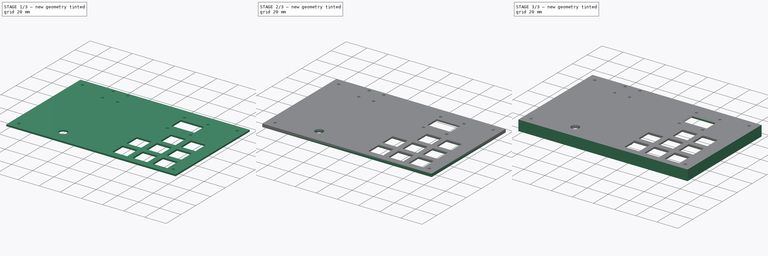
[diagram: build sequence overview — one tinted view per stage of 3, left to right]
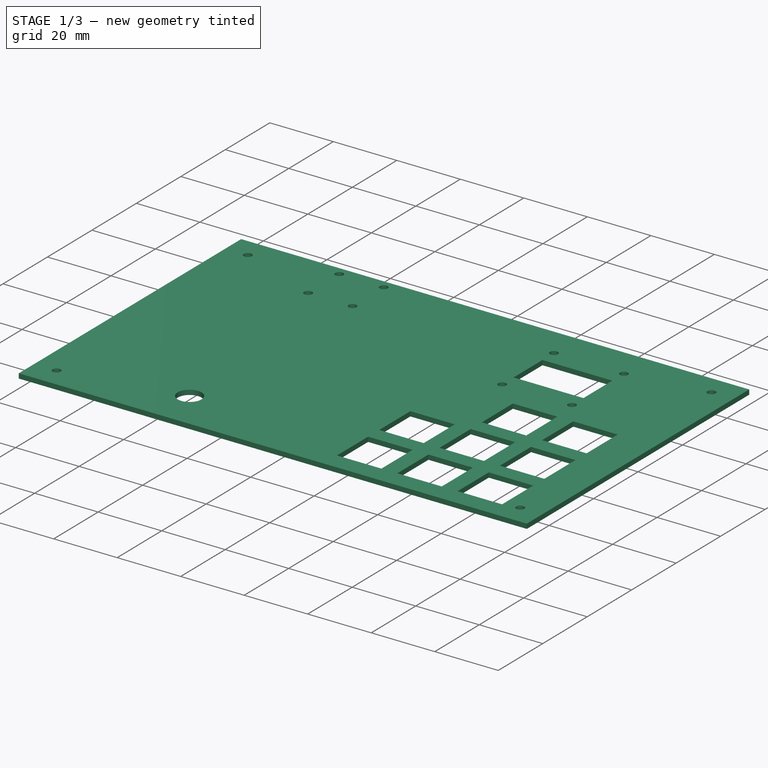
[diagram: stage 1 of 3 — iso view after this stage's code; geometry added in this stage tinted green]
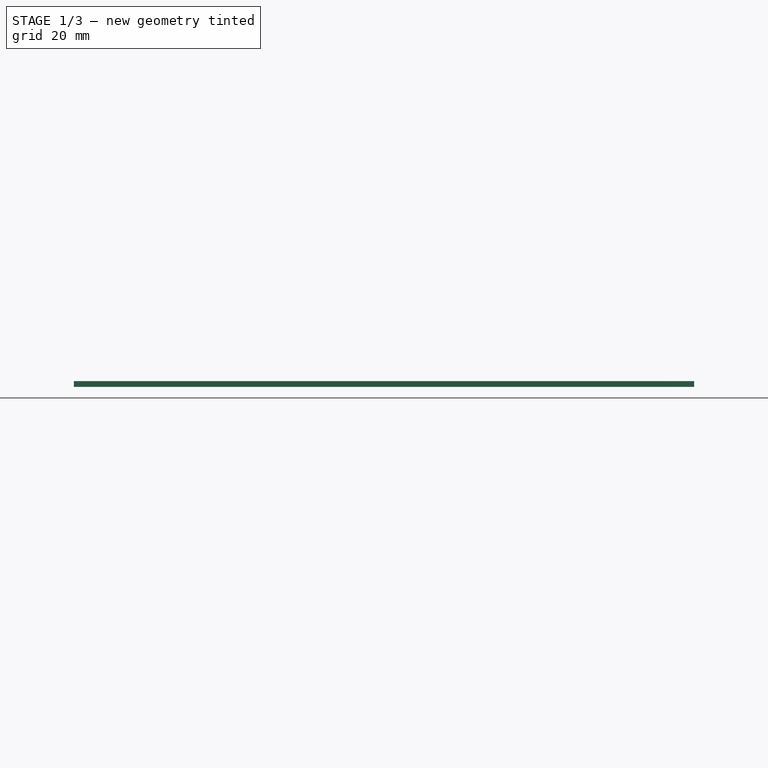
[diagram: stage 1 of 3 — front view after this stage's code; geometry added in this stage tinted green]
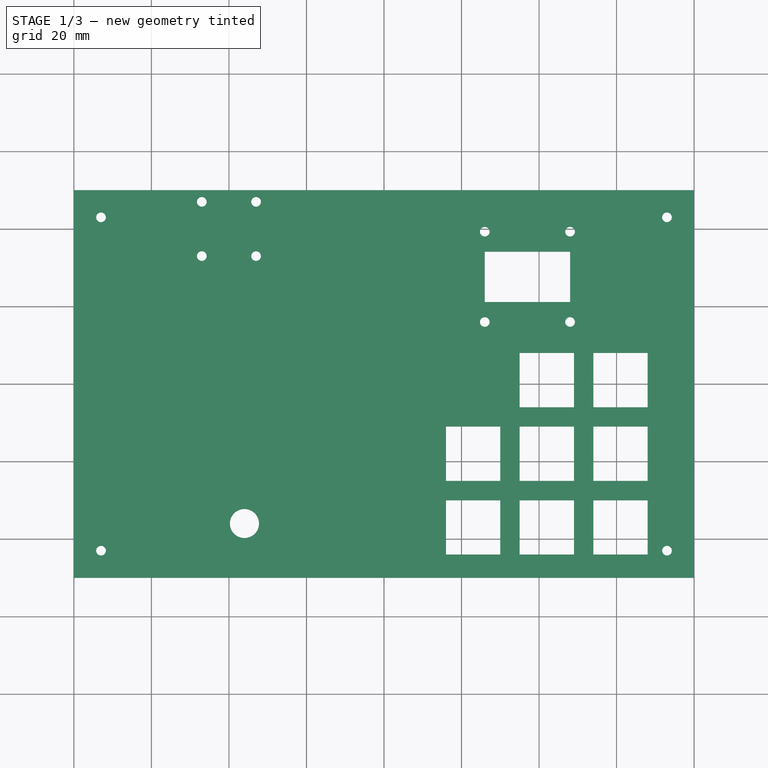
[diagram: stage 1 of 3 — top view after this stage's code; geometry added in this stage tinted green]
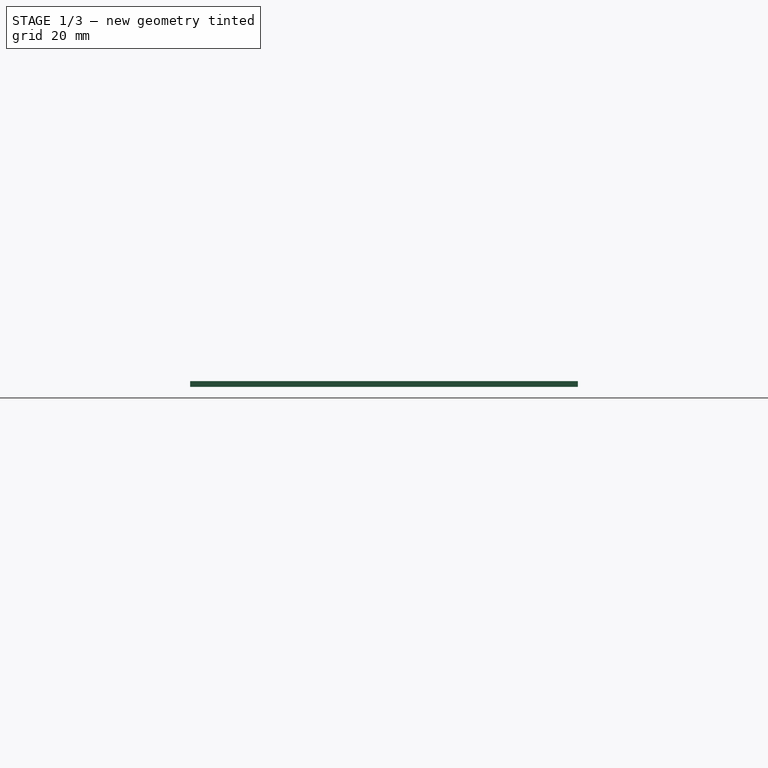
[diagram: stage 1 of 3 — right view after this stage's code; geometry added in this stage tinted green]
FCSTD DOCUMENT  (FreeCAD 1.0R38641 +678 (Git))
Label: chahor_top_plate
License: All rights reserved
LicenseURL: https://en.wikipedia.org/wiki/All_rights_reserved
objects: Sketcher::SketchObject×4, PartDesign::Pad×3, PartDesign::Pocket×1, PartDesign::Chamfer×1, PartDesign::Body×1
note: 24 computed .brp shape members not serialized (recipe doc carries the construction recipe); baked Part::Feature solids carry a one-line shape summary decoded from their .brp

FEATURE [Sketcher::SketchObject] Sketch  label="base_plate"
  ArcFitTolerance = 1e-06
  AttachmentSupport = -> [XY_Plane]
  FullyConstrained = true
  MakeInternals = false
  MapMode = 5
  sketch-geometry (5):
    g0: LineSegment StartX=-80 StartY=-50 StartZ=0 EndX=80 EndY=-50 EndZ=0
    g1: LineSegment StartX=80 StartY=-50 StartZ=0 EndX=80 EndY=50 EndZ=0
    g2: LineSegment StartX=80 StartY=50 StartZ=0 EndX=-80 EndY=50 EndZ=0
    g3: LineSegment StartX=-80 StartY=50 StartZ=0 EndX=-80 EndY=-50 EndZ=0
    g4: GeomPoint [constr] X=0 Y=0 Z=0
  constraints (12):
    c: Coincident(g0,g1)
    c: Coincident(g1,g2)
    c: Coincident(g2,g3)
    c: Coincident(g3,g0)
    c: Horizontal(g0)
    c: Horizontal(g2)
    c: Vertical(g1)
    c: Vertical(g3)
    c: Symmetric(g2,g0,g4)
    c: Distance(g1,g3) = 160  'plate_length'
    c: Distance(g0,g2) = 100  'plate_width'
    c: Coincident(g4,g-1)
FEATURE [PartDesign::Pad] Pad
  Direction = (0,0,1)
  Length = 1.5
  Length2 = 10
  Profile = -> Sketch
  ReferenceAxis = -> Sketch [N_Axis]
  Refine = true
  Suppressed = false
  Type = 0
FEATURE [Sketcher::SketchObject] Sketch001  label="top_holes"
  ArcFitTolerance = 1e-06
  AttachmentSupport = -> [Pad]
  FullyConstrained = false
  MakeInternals = false
  MapMode = 5
  Placement = pos=(0,0,1.5) rot=(0,0,1;0rad)
  expr: Constraints[151] = <<base_plate>>.Constraints.plate_length / 2 - 33 mm
  expr: Constraints[153] = <<base_plate>>.Constraints.plate_width / 2 - 3 mm
  expr: Constraints[185] = (23.3 mm - 13 mm) / 2
  expr: Constraints[190] = <<base_plate>>.Constraints.plate_width / 2 - 7 mm
  expr: Constraints[191] = <<base_plate>>.Constraints.plate_length / 2 - 7 mm
  expr: Constraints[93] = <<base_plate>>.Constraints.plate_length / 2
  expr: Constraints[95] = <<base_plate>>.Constraints.plate_width / 2
  sketch-geometry (81):
    g0: LineSegment StartX=35 StartY=-25 StartZ=0 EndX=49 EndY=-25 EndZ=0
    g1: LineSegment StartX=49 StartY=-25 StartZ=0 EndX=49 EndY=-11 EndZ=0
    g2: LineSegment StartX=49 StartY=-11 StartZ=0 EndX=35 EndY=-11 EndZ=0
    g3: LineSegment StartX=35 StartY=-11 StartZ=0 EndX=35 EndY=-25 EndZ=0
    g4: GeomPoint [constr] X=42 Y=-18 Z=0
    g5: LineSegment StartX=16 StartY=-25 StartZ=0 EndX=30 EndY=-25 EndZ=0
    g6: LineSegment StartX=30 StartY=-25 StartZ=0 EndX=30 EndY=-11 EndZ=0
    g7: LineSegment StartX=30 StartY=-11 StartZ=0 EndX=16 EndY=-11 EndZ=0
    g8: LineSegment StartX=16 StartY=-11 StartZ=0 EndX=16 EndY=-25 EndZ=0
    g9: GeomPoint [constr] X=23 Y=-18 Z=0
    g10: LineSegment StartX=54 StartY=-25 StartZ=0 EndX=68 EndY=-25 EndZ=0
    g11: LineSegment StartX=68 StartY=-25 StartZ=0 EndX=68 EndY=-11 EndZ=0
    g12: LineSegment StartX=68 StartY=-11 StartZ=0 EndX=54 EndY=-11 EndZ=0
    g13: LineSegment StartX=54 StartY=-11 StartZ=0 EndX=54 EndY=-25 EndZ=0
    g14: GeomPoint [constr] X=61 Y=-18 Z=0
    g15: LineSegment StartX=16 StartY=-44 StartZ=0 EndX=30 EndY=-44 EndZ=0
    g16: LineSegment StartX=30 StartY=-44 StartZ=0 EndX=30 EndY=-30 EndZ=0
    g17: LineSegment StartX=30 StartY=-30 StartZ=0 EndX=16 EndY=-30 EndZ=0
    g18: LineSegment StartX=16 StartY=-30 StartZ=0 EndX=16 EndY=-44 EndZ=0
    g19: GeomPoint [constr] X=23 Y=-37 Z=0
    g20: LineSegment StartX=35 StartY=-44 StartZ=0 EndX=49 EndY=-44 EndZ=0
    g21: LineSegment StartX=49 StartY=-44 StartZ=0 EndX=49 EndY=-30 EndZ=0
    g22: LineSegment StartX=49 StartY=-30 StartZ=0 EndX=35 EndY=-30 EndZ=0
    g23: LineSegment StartX=35 StartY=-30 StartZ=0 EndX=35 EndY=-44 EndZ=0
    g24: GeomPoint [constr] X=42 Y=-37 Z=0
    g25: LineSegment StartX=54 StartY=-44 StartZ=0 EndX=68 EndY=-44 EndZ=0
    g26: LineSegment StartX=68 StartY=-44 StartZ=0 EndX=68 EndY=-30 EndZ=0
    g27: LineSegment StartX=68 StartY=-30 StartZ=0 EndX=54 EndY=-30 EndZ=0
    g28: LineSegment StartX=54 StartY=-30 StartZ=0 EndX=54 EndY=-44 EndZ=0
    g29: GeomPoint [constr] X=61 Y=-37 Z=0
    g30: LineSegment [constr] StartX=0 StartY=-37 StartZ=0 EndX=79.3408 EndY=-37 EndZ=0
    g31: LineSegment [constr] StartX=0 StartY=-18 StartZ=0 EndX=59.2291 EndY=-18 EndZ=0
    g32: LineSegment [constr] StartX=30 StartY=-11 StartZ=0 EndX=35 EndY=-11 EndZ=0
    g33: LineSegment [constr] StartX=49 StartY=-11 StartZ=0 EndX=54 EndY=-11 EndZ=0
    g34: LineSegment [constr] StartX=30 StartY=-30 StartZ=0 EndX=35 EndY=-30 EndZ=0
    g35: LineSegment [constr] StartX=49 StartY=-30 StartZ=0 EndX=54 EndY=-30 EndZ=0
    g36: LineSegment [constr] StartX=16 StartY=-25 StartZ=0 EndX=16 EndY=-30 EndZ=0
    g37: LineSegment [constr] StartX=80 StartY=44.872 StartZ=0 EndX=80 EndY=-41.9581 EndZ=0
    g38: LineSegment [constr] StartX=-38.4882 StartY=-50 StartZ=0 EndX=82.0645 EndY=-50 EndZ=0
    g39: LineSegment StartX=35 StartY=-6 StartZ=0 EndX=49 EndY=-6 EndZ=0
    g40: LineSegment StartX=49 StartY=-6 StartZ=0 EndX=49 EndY=8 EndZ=0
    g41: LineSegment StartX=49 StartY=8 StartZ=0 EndX=35 EndY=8 EndZ=0
    g42: LineSegment StartX=35 StartY=8 StartZ=0 EndX=35 EndY=-6 EndZ=0
    g43: GeomPoint [constr] X=42 Y=1 Z=0
    g44: LineSegment StartX=54 StartY=-6 StartZ=0 EndX=68 EndY=-6 EndZ=0
    g45: LineSegment StartX=68 StartY=-6 StartZ=0 EndX=68 EndY=8 EndZ=0
    g46: LineSegment StartX=68 StartY=8 StartZ=0 EndX=54 EndY=8 EndZ=0
    g47: LineSegment StartX=54 StartY=8 StartZ=0 EndX=54 EndY=-6 EndZ=0
    g48: GeomPoint [constr] X=61 Y=1 Z=0
    g49: LineSegment [constr] StartX=49 StartY=-6 StartZ=0 EndX=54 EndY=-6 EndZ=0
    g50: LineSegment [constr] StartX=68 StartY=-6 StartZ=0 EndX=68 EndY=-11 EndZ=0
    g51: Circle CenterX=-36 CenterY=-36 CenterZ=0 NormalX=0 NormalY=0 NormalZ=1 AngleXU=0 Radius=3.75
    g52: Circle CenterX=-47 CenterY=47 CenterZ=0 NormalX=0 NormalY=0 NormalZ=1 AngleXU=0 Radius=1.25
    g53: LineSegment [constr] StartX=-47 StartY=47 StartZ=0 EndX=-47 EndY=33 EndZ=0
    g54: LineSegment [constr] StartX=-47 StartY=33 StartZ=0 EndX=-33 EndY=33 EndZ=0
    g55: LineSegment [constr] StartX=-33 StartY=33 StartZ=0 EndX=-33 EndY=47 EndZ=0
    g56: LineSegment [constr] StartX=-33 StartY=47 StartZ=0 EndX=-47 EndY=47 EndZ=0
    g57: Circle CenterX=-33 CenterY=47 CenterZ=0 NormalX=0 NormalY=0 NormalZ=1 AngleXU=0 Radius=1.25
    g58: Circle CenterX=-47 CenterY=33 CenterZ=0 NormalX=0 NormalY=0 NormalZ=1 AngleXU=0 Radius=1.25
    g59: Circle CenterX=-33 CenterY=33 CenterZ=0 NormalX=0 NormalY=0 NormalZ=1 AngleXU=0 Radius=1.25
    g60: LineSegment [constr] StartX=-47 StartY=72.9325 StartZ=0 EndX=-47 EndY=-21.5341 EndZ=0
    g61: LineSegment [constr] StartX=26 StartY=39.3 StartZ=0 EndX=26 EndY=16 EndZ=0
    g62: LineSegment [constr] StartX=26 StartY=16 StartZ=0 EndX=48 EndY=16 EndZ=0
    g63: LineSegment [constr] StartX=48 StartY=16 StartZ=0 EndX=48 EndY=39.3 EndZ=0
    g64: LineSegment [constr] StartX=48 StartY=39.3 StartZ=0 EndX=26 EndY=39.3 EndZ=0
    g65: Circle CenterX=26 CenterY=39.3 CenterZ=0 NormalX=0 NormalY=0 NormalZ=1 AngleXU=0 Radius=1.25
    g66: Circle CenterX=48 CenterY=39.3 CenterZ=0 NormalX=0 NormalY=0 NormalZ=1 AngleXU=0 Radius=1.25
    g67: Circle CenterX=26 CenterY=16 CenterZ=0 NormalX=0 NormalY=0 NormalZ=1 AngleXU=0 Radius=1.25
    g68: Circle CenterX=48 CenterY=16 CenterZ=0 NormalX=0 NormalY=0 NormalZ=1 AngleXU=0 Radius=1.25
    g69: LineSegment StartX=26 StartY=34.15 StartZ=0 EndX=26 EndY=21.15 EndZ=0
    g70: LineSegment StartX=26 StartY=21.15 StartZ=0 EndX=48 EndY=21.15 EndZ=0
    g71: LineSegment StartX=48 StartY=21.15 StartZ=0 EndX=48 EndY=34.15 EndZ=0
    g72: LineSegment StartX=48 StartY=34.15 StartZ=0 EndX=26 EndY=34.15 EndZ=0
    g73: Circle CenterX=-73 CenterY=43 CenterZ=0 NormalX=0 NormalY=0 NormalZ=1 AngleXU=0 Radius=1.25
    g74: Circle CenterX=-73 CenterY=-43 CenterZ=0 NormalX=0 NormalY=0 NormalZ=1 AngleXU=0 Radius=1.25
    g75: Circle CenterX=73 CenterY=43 CenterZ=0 NormalX=0 NormalY=0 NormalZ=1 AngleXU=0 Radius=1.25
    g76: Circle CenterX=73 CenterY=-43 CenterZ=0 NormalX=0 NormalY=0 NormalZ=1 AngleXU=0 Radius=1.25
    g77: LineSegment [constr] StartX=-73 StartY=43 StartZ=0 EndX=-73 EndY=-43 EndZ=0
    g78: LineSegment [constr] StartX=-73 StartY=43 StartZ=0 EndX=73 EndY=43 EndZ=0
    g79: LineSegment [constr] StartX=-73 StartY=-43 StartZ=0 EndX=73 EndY=-43 EndZ=0
    g80: LineSegment [constr] StartX=73 StartY=43 StartZ=0 EndX=73 EndY=-43 EndZ=0
  constraints (201):
    c: Coincident(g0,g1)
    c: Coincident(g1,g2)
    c: Coincident(g2,g3)
    c: Coincident(g3,g0)
    c: Horizontal(g0)
    c: Horizontal(g2)
    c: Vertical(g1)
    c: Vertical(g3)
    c: Symmetric(g2,g0,g4)
    c: Distance(g1,g3) = 14
    c: Distance(g0,g2) = 14
    c: Coincident(g5,g6)
    c: Coincident(g10,g11)
    c: Coincident(g15,g16)
    c: Coincident(g20,g21)
    c: Coincident(g25,g26)
    c: Coincident(g6,g7)
    c: Coincident(g11,g12)
    c: Coincident(g16,g17)
    c: Coincident(g21,g22)
    c: Coincident(g26,g27)
    c: Coincident(g7,g8)
    c: Coincident(g12,g13)
    c: Coincident(g17,g18)
    c: Coincident(g22,g23)
    c: Coincident(g27,g28)
    c: Coincident(g8,g5)
    c: Coincident(g13,g10)
    c: Coincident(g18,g15)
    c: Coincident(g23,g20)
    c: Coincident(g28,g25)
    c: Horizontal(g5)
    c: Horizontal(g10)
    c: Horizontal(g15)
    c: Horizontal(g20)
    c: Horizontal(g25)
    c: Horizontal(g7)
    c: Horizontal(g12)
    c: Horizontal(g17)
    c: Horizontal(g22)
    c: Horizontal(g27)
    c: Vertical(g6)
    c: Vertical(g11)
    c: Vertical(g16)
    c: Vertical(g21)
    c: Vertical(g26)
    c: Vertical(g8)
    c: Vertical(g13)
    c: Vertical(g18)
    c: Vertical(g23)
    c: Vertical(g28)
    c: Symmetric(g7,g5,g9)
    c: Symmetric(g12,g10,g14)
    c: Symmetric(g17,g15,g19)
    c: Symmetric(g22,g20,g24)
    c: Symmetric(g27,g25,g29)
    c: Distance(g6,g8) = 14
    c: Distance(g11,g13) = 14
    c: Distance(g16,g18) = 14
    c: Distance(g21,g23) = 14
    c: Distance(g26,g28) = 14
    c: Distance(g5,g7) = 14  'hole_width'
    c: Distance(g10,g12) = 14
    c: Distance(g15,g17) = 14
    c: Distance(g20,g22) = 14
    c: Distance(g25,g27) = 14
    c: PointOnObject(g30,g-2)
    c: Parallel(g30,g-1)
    c: PointOnObject(g19,g30)
    c: PointOnObject(g24,g30)
    c: PointOnObject(g29,g30)
    c: PointOnObject(g31,g-2)
    c: Horizontal(g31)
    c: PointOnObject(g9,g31)
    c: PointOnObject(g4,g31)
    c: PointOnObject(g14,g31)
    c: Distance(g32) = 5  'key_spacing'
    c: Coincident(g32,g6)
    c: Coincident(g32,g2)
    c: Coincident(g33,g1)
    c: Coincident(g33,g12)
    c: Equal(g32,g33)
    c: Coincident(g34,g16)
    c: Coincident(g34,g22)
    c: Coincident(g35,g21)
    c: Coincident(g35,g27)
    c: Equal(g34,g35)
    c: Equal(g34,g32)
    c: Coincident(g36,g5)
    c: Coincident(g36,g17)
    c: Equal(g36,g32)
    c: Parallel(g36,g-2)
    c: Vertical(g37)
    c: Distance(g-2,g37) = 80
    c: Horizontal(g38)
    c: Distance(g-1,g38) = 50
    c: Distance(g37,g11) = 12
    c: Distance(g38,g25) = 6
    c: Coincident(g39,g40)
    c: Coincident(g44,g45)
    c: Coincident(g40,g41)
    c: Coincident(g45,g46)
    c: Coincident(g41,g42)
    c: Coincident(g46,g47)
    c: Coincident(g42,g39)
    c: Coincident(g47,g44)
    c: Horizontal(g39)
    c: Horizontal(g44)
    c: Horizontal(g41)
    c: Horizontal(g46)
    c: Vertical(g40)
    c: Vertical(g45)
    c: Vertical(g42)
    c: Vertical(g47)
    c: Symmetric(g41,g39,g43)
    c: Symmetric(g46,g44,g48)
    c: Distance(g40,g42) = 14
    c: Distance(g45,g47) = 14
    c: Distance(g39,g41) = 14
    c: Distance(g44,g46) = 14
    c: Coincident(g49,g39)
    c: Coincident(g49,g44)
    c: Parallel(g49,g32)
    c: Coincident(g50,g44)
    c: Coincident(g50,g11)
    c: Equal(g50,g33)
    c: Equal(g33,g49)
    c: Parallel(g50,g-2)
    c: Equal(g5,g6)
    c: Diameter(g51) = 7.5
    c: Distance(g51,g38) = 14
    c: Distance(g51,g-2) = 36
    c: Diameter(g52) = 2.5
    c: Coincident(g53,g54)
    c: Coincident(g54,g55)
    c: Coincident(g55,g56)
    c: Coincident(g56,g53)
    c: Vertical(g53)
    c: Vertical(g55)
    c: Horizontal(g54)
    c: Horizontal(g56)
    c: DistanceX(g56,g56) = 14
    c: DistanceY(g53,g53) = 14
    c: Equal(g52,g57)
    c: Equal(g52,g58)
    c: Equal(g52,g59)
    c: Coincident(g52,g53)
    c: Coincident(g57,g55)
    c: Coincident(g58,g53)
    c: Coincident(g59,g54)
    c: Vertical(g60)
    c: Distance(g-2,g60) = 47
    c: PointOnObject(g53,g60)
    c: Distance(g-1,g56) = 47
    c: Coincident(g61,g62)
    c: Coincident(g62,g63)
    c: Coincident(g63,g64)
    c: Coincident(g64,g61)
    c: Vertical(g61)
    c: Vertical(g63)
    c: Horizontal(g62)
    c: Horizontal(g64)
    c: DistanceX(g64,g64) = 22
    c: DistanceY(g61,g61) = 23.3
    c: Distance(g37,g63) = 32  'screen_x'
    c: Distance(g62,g-1) = 16  'screen_y'
    c: Diameter(g65) = 2.5
    c: Equal(g65,g66)
    c: Equal(g65,g67)
    c: Equal(g65,g68)
    c: Coincident(g66,g63)
    c: Coincident(g65,g61)
    c: Coincident(g67,g61)
    c: Coincident(g68,g62)
    c: Coincident(g69,g70)
    c: Coincident(g70,g71)
    c: Coincident(g71,g72)
    c: Coincident(g72,g69)
    c: Vertical(g69)
    c: Vertical(g71)
    c: Horizontal(g70)
    c: Horizontal(g72)
    c: DistanceX(g72,g72) = 22
    c: DistanceY(g71,g71) = 13
    c: PointOnObject(g69,g61)
    c: DistanceY(g62,g70) = 5.15
    c: Equal(g52, g73-g76) x4
    c: Distance(g73,g-1) = 43
    c: Distance(g73,g-2) = 73
    c: Coincident(g77,g73)
    c: Coincident(g74,g77)
    c: Symmetric(g73,g74,g-1)
    c: Coincident(g78,g73)
    c: Horizontal(g78)
    c: Coincident(g78,g75)
    c: Coincident(g79,g74)
    c: Coincident(g79,g76)
    c: Coincident(g80,g75)
    c: Coincident(g80,g76)
    c: Vertical(g80)
    c: Symmetric(g76,g74,g-2)
FEATURE [PartDesign::Pocket] Pocket
  BaseFeature = -> Pad
  Direction = (0,0,-1)
  Length = 2
  Length2 = 5
  Profile = -> Sketch001
  ReferenceAxis = -> Sketch001 [N_Axis]
  Refine = true
  Suppressed = false
  Type = 0
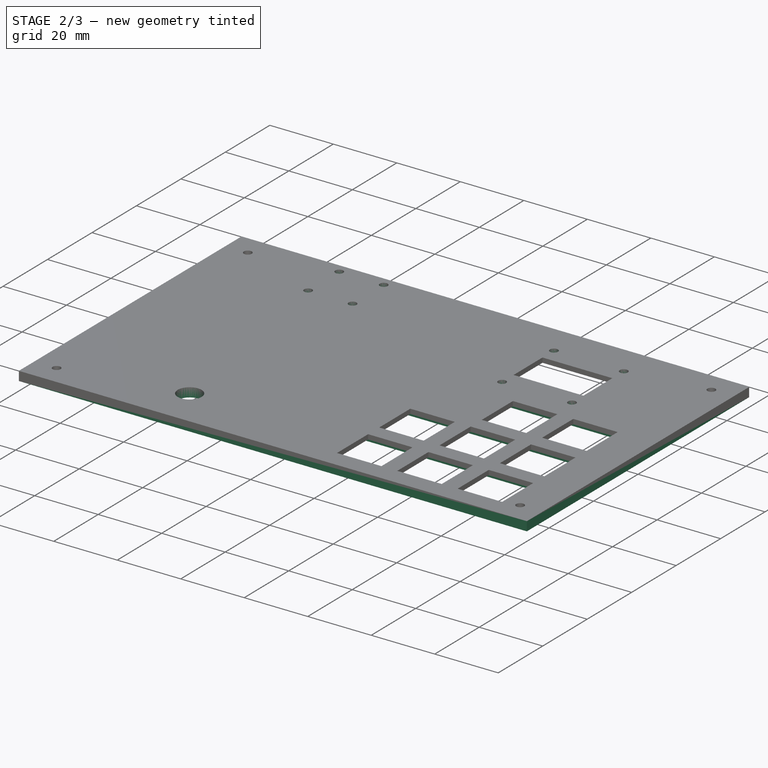
[diagram: stage 2 of 3 — iso view after this stage's code; geometry added in this stage tinted green]
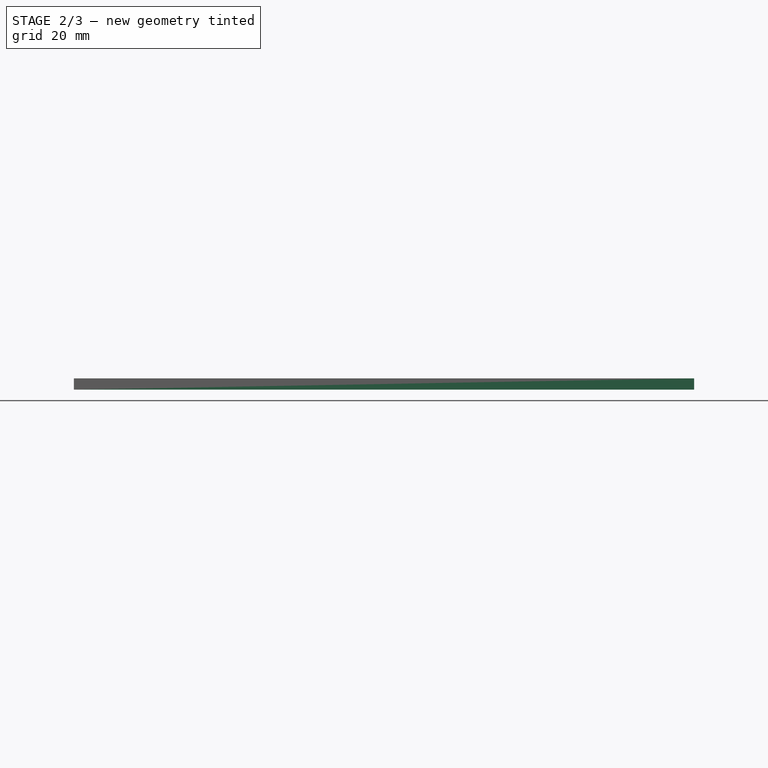
[diagram: stage 2 of 3 — front view after this stage's code; geometry added in this stage tinted green]
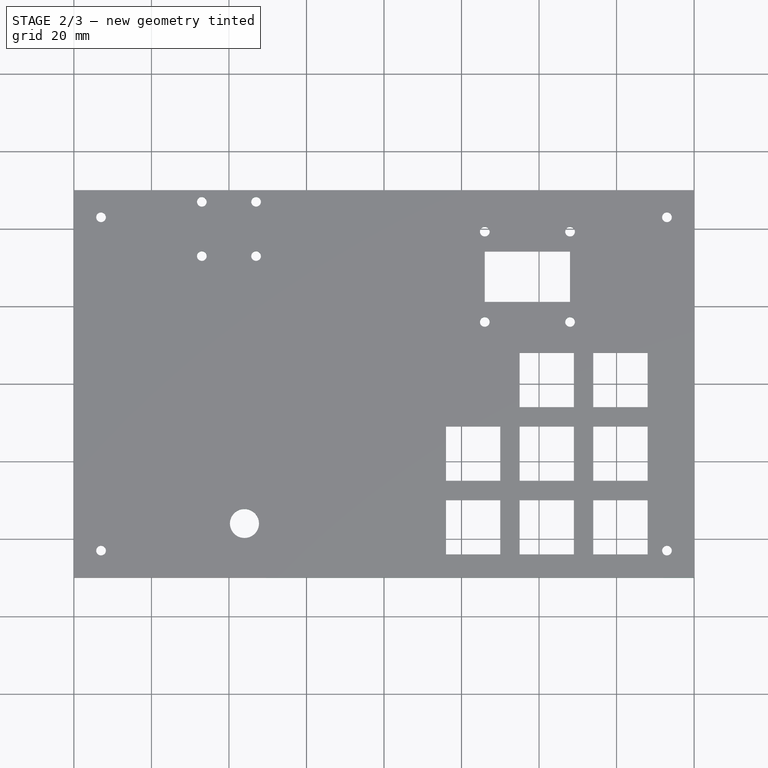
[diagram: stage 2 of 3 — top view after this stage's code; geometry added in this stage tinted green]
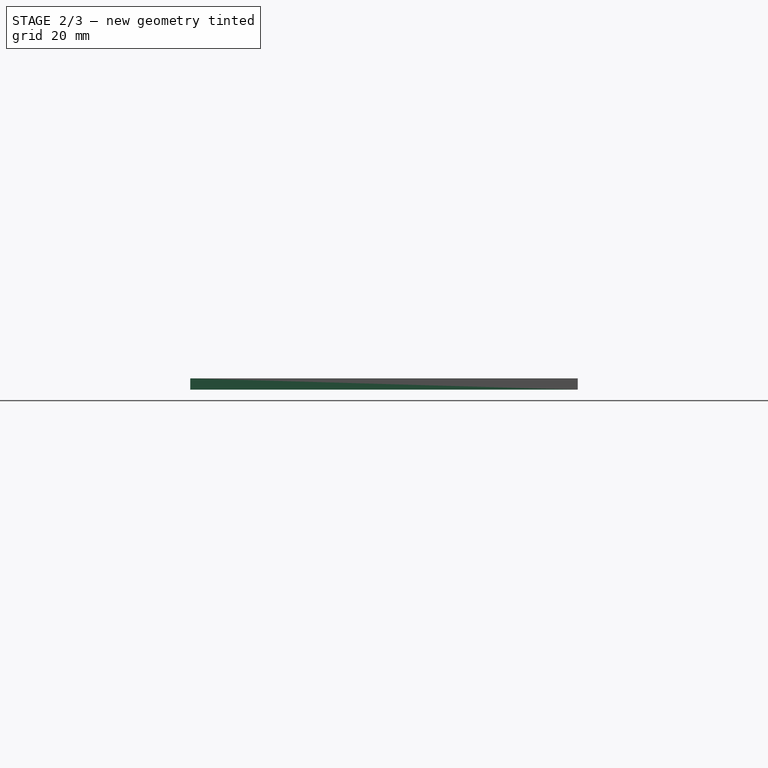
[diagram: stage 2 of 3 — right view after this stage's code; geometry added in this stage tinted green]
FEATURE [Sketcher::SketchObject] Sketch002  label="inner_ribs"
  ArcFitTolerance = 1e-06
  AttachmentSupport = -> [Pocket]
  FullyConstrained = false
  MakeInternals = false
  MapMode = 5
  Placement = pos=(0,0,0) rot=(1,0,0;3.14159rad)
  expr: Constraints[117] = <<base_plate>>.Constraints.plate_length / 2 - 33 mm
  expr: Constraints[118] = <<base_plate>>.Constraints.plate_width / 2 - 3 mm
  expr: Constraints[4] = <<base_plate>>.Constraints.plate_length
  expr: Constraints[5] = <<base_plate>>.Constraints.plate_width
  expr: Constraints[69] = 6 + 14 - 1.5
  expr: Constraints[6] = <<base_plate>>.Constraints.plate_width / 2
  expr: Constraints[85] = <<top_holes>>.Constraints.screen_y
  expr: Constraints[86] = <<top_holes>>.Constraints.screen_x
  sketch-geometry (61):
    g0: LineSegment StartX=80 StartY=-50 StartZ=0 EndX=80 EndY=50 EndZ=0
    g1: LineSegment StartX=80 StartY=50 StartZ=0 EndX=-80 EndY=50 EndZ=0
    g2: LineSegment StartX=-80 StartY=-50 StartZ=0 EndX=80 EndY=-50 EndZ=0
    g3: Circle CenterX=-47 CenterY=-33 CenterZ=0 NormalX=0 NormalY=0 NormalZ=1 AngleXU=0 Radius=1.25
    g4: LineSegment [constr] StartX=-47 StartY=-33 StartZ=0 EndX=-47 EndY=-47 EndZ=0
    g5: LineSegment [constr] StartX=-47 StartY=-47 StartZ=0 EndX=-33 EndY=-47 EndZ=0
    g6: LineSegment [constr] StartX=-33 StartY=-47 StartZ=0 EndX=-33 EndY=-33 EndZ=0
    g7: LineSegment [constr] StartX=-33 StartY=-33 StartZ=0 EndX=-47 EndY=-33 EndZ=0
    g8: Circle CenterX=-33 CenterY=-33 CenterZ=0 NormalX=0 NormalY=0 NormalZ=1 AngleXU=0 Radius=1.25
    g9: Circle CenterX=-47 CenterY=-47 CenterZ=0 NormalX=0 NormalY=0 NormalZ=1 AngleXU=0 Radius=1.25
    g10: Circle CenterX=-33 CenterY=-47 CenterZ=0 NormalX=0 NormalY=0 NormalZ=1 AngleXU=0 Radius=1.25
    g11: LineSegment StartX=-1 StartY=47 StartZ=0 EndX=-77 EndY=47 EndZ=0
    g12: LineSegment StartX=-77 StartY=47 StartZ=0 EndX=-77 EndY=-47 EndZ=0
    g13: LineSegment StartX=-1 StartY=47 StartZ=0 EndX=-1 EndY=-47 EndZ=0
    g14: LineSegment StartX=1 StartY=47 StartZ=0 EndX=1 EndY=28.5 EndZ=0
    g15: LineSegment StartX=1 StartY=28.5 StartZ=0 EndX=77 EndY=28.5 EndZ=0
    g16: LineSegment StartX=77 StartY=28.5 StartZ=0 EndX=77 EndY=47 EndZ=0
    g17: LineSegment StartX=77 StartY=47 StartZ=0 EndX=1 EndY=47 EndZ=0
    g18: LineSegment StartX=1 StartY=26.5 StartZ=0 EndX=1 EndY=9.5 EndZ=0
    g19: LineSegment StartX=1 StartY=9.5 StartZ=0 EndX=77 EndY=9.5 EndZ=0
    g20: LineSegment StartX=77 StartY=9.5 StartZ=0 EndX=77 EndY=26.5 EndZ=0
    g21: LineSegment StartX=77 StartY=26.5 StartZ=0 EndX=1 EndY=26.5 EndZ=0
    g22: LineSegment StartX=1 StartY=7.5 StartZ=0 EndX=1 EndY=-9.5 EndZ=0
    g23: LineSegment StartX=1 StartY=-9.5 StartZ=0 EndX=77 EndY=-9.5 EndZ=0
    g24: LineSegment StartX=77 StartY=-9.5 StartZ=0 EndX=77 EndY=7.5 EndZ=0
    g25: LineSegment StartX=77 StartY=7.5 StartZ=0 EndX=1 EndY=7.5 EndZ=0
    g26: LineSegment StartX=1 StartY=-11.5 StartZ=0 EndX=1 EndY=-47 EndZ=0
    g27: LineSegment StartX=77 StartY=-47 StartZ=0 EndX=77 EndY=-11.5 EndZ=0
    g28: LineSegment StartX=77 StartY=-11.5 StartZ=0 EndX=1 EndY=-11.5 EndZ=0
    g29: LineSegment [constr] StartX=1 StartY=91.6457 StartZ=0 EndX=1 EndY=-66.4058 EndZ=0
    g30: LineSegment [constr] StartX=77 StartY=74.1768 StartZ=0 EndX=77 EndY=-64.5341 EndZ=0
    g31: LineSegment [constr] StartX=26 StartY=-16 StartZ=0 EndX=26 EndY=-39.3 EndZ=0
    g32: LineSegment [constr] StartX=26 StartY=-39.3 StartZ=0 EndX=48 EndY=-39.3 EndZ=0
    g33: LineSegment [constr] StartX=48 StartY=-39.3 StartZ=0 EndX=48 EndY=-16 EndZ=0
    g34: LineSegment [constr] StartX=48 StartY=-16 StartZ=0 EndX=26 EndY=-16 EndZ=0
    g35: Circle CenterX=26 CenterY=-16 CenterZ=0 NormalX=0 NormalY=0 NormalZ=1 AngleXU=0 Radius=1.25
    g36: Circle CenterX=26 CenterY=-16 CenterZ=0 NormalX=0 NormalY=0 NormalZ=1 AngleXU=0 Radius=2
    g37: Circle CenterX=48 CenterY=-16 CenterZ=0 NormalX=0 NormalY=0 NormalZ=1 AngleXU=0 Radius=1.25
    g38: Circle CenterX=48 CenterY=-16 CenterZ=0 NormalX=0 NormalY=0 NormalZ=1 AngleXU=0 Radius=2
    g39: Circle CenterX=26 CenterY=-39.3 CenterZ=0 NormalX=0 NormalY=0 NormalZ=1 AngleXU=0 Radius=1.25
    g40: Circle CenterX=26 CenterY=-39.3 CenterZ=0 NormalX=0 NormalY=0 NormalZ=1 AngleXU=0 Radius=2
    g41: Circle CenterX=48 CenterY=-39.3 CenterZ=0 NormalX=0 NormalY=0 NormalZ=1 AngleXU=0 Radius=1.25
    g42: Circle CenterX=48 CenterY=-39.3 CenterZ=0 NormalX=0 NormalY=0 NormalZ=1 AngleXU=0 Radius=2
    g43: Circle CenterX=-36 CenterY=36 CenterZ=0 NormalX=0 NormalY=0 NormalZ=1 AngleXU=0 Radius=3.75
    g44: LineSegment [constr] StartX=-36 StartY=36 StartZ=0 EndX=-36 EndY=-21.2495 EndZ=0
    g45: LineSegment [constr] StartX=-36 StartY=36 StartZ=0 EndX=-61.2858 EndY=36 EndZ=0
    g46: LineSegment [constr] StartX=-26.4913 StartY=30 StartZ=0 EndX=-61.1327 EndY=30 EndZ=0
    g47: Circle CenterX=-36 CenterY=36 CenterZ=0 NormalX=0 NormalY=0 NormalZ=1 AngleXU=0 Radius=10
    g48: ArcOfCircle CenterX=-36.4 CenterY=30 CenterZ=0 NormalX=0 NormalY=0 NormalZ=1 AngleXU=0 Radius=1 StartAngle=1.5708 EndAngle=4.71239
    g49: ArcOfCircle CenterX=-35.6 CenterY=30 CenterZ=0 NormalX=0 NormalY=0 NormalZ=1 AngleXU=0 Radius=1 StartAngle=4.71239 EndAngle=7.85398
    g50: LineSegment StartX=-36.4 StartY=31 StartZ=0 EndX=-35.6 EndY=31 EndZ=0
    g51: LineSegment StartX=-36.4 StartY=29 StartZ=0 EndX=-35.6 EndY=29 EndZ=0
    g52: LineSegment StartX=1 StartY=-47 StartZ=0 EndX=77 EndY=-47 EndZ=0
    g53: LineSegment StartX=-52.1 StartY=-30.9 StartZ=0 EndX=-52.1 EndY=-47 EndZ=0
    g54: LineSegment StartX=-27.9 StartY=-47 StartZ=0 EndX=-27.9 EndY=-30.9 EndZ=0
    g55: LineSegment StartX=-27.9 StartY=-30.9 StartZ=0 EndX=-52.1 EndY=-30.9 EndZ=0
    g56: LineSegment StartX=-27.9 StartY=-47 StartZ=0 EndX=-1 EndY=-47 EndZ=0
    g57: LineSegment StartX=-77 StartY=-47 StartZ=0 EndX=-52.1 EndY=-47 EndZ=0
    g58: LineSegment StartX=-80 StartY=50 StartZ=0 EndX=-80 EndY=-50 EndZ=0
    g59: Circle CenterX=0 CenterY=20 CenterZ=0 NormalX=0 NormalY=0 NormalZ=1 AngleXU=0 Radius=6
    g60: Circle CenterX=0 CenterY=-20 CenterZ=0 NormalX=0 NormalY=0 NormalZ=1 AngleXU=0 Radius=6
  constraints (148):
    c: Coincident(g0,g1)
    c: Coincident(g2,g0)
    c: Vertical(g0)
    c: Horizontal(g2)
    c: DistanceX(g1,g1) = 160
    c: DistanceY(g2,g1) = 100
    c: Distance(g-1,g1) = 50
    c: Diameter(g3) = 2.5
    c: Coincident(g4,g5)
    c: Coincident(g5,g6)
    c: Coincident(g6,g7)
    c: Coincident(g7,g4)
    c: Vertical(g4)
    c: Vertical(g6)
    c: Horizontal(g5)
    c: Horizontal(g7)
    c: DistanceX(g7,g7) = 14  'pico_holes_len'
    c: DistanceY(g4,g4) = 14
    c: Equal(g3,g8)
    c: Equal(g3,g9)
    c: Equal(g3,g10)
    c: Coincident(g3,g4)
    c: Coincident(g8,g6)
    c: Coincident(g9,g4)
    c: Coincident(g10,g5)
    c: Horizontal(g11)
    c: Coincident(g12,g11)
    c: Vertical(g12)
    c: Distance(g1,g12) = 3
    c: Coincident(g13,g11)
    c: Vertical(g13)
    c: Coincident(g14,g15)
    c: Coincident(g15,g16)
    c: Coincident(g16,g17)
    c: Coincident(g17,g14)
    c: Vertical(g14)
    c: Vertical(g16)
    c: Horizontal(g15)
    c: Horizontal(g17)
    c: Coincident(g18,g19)
    c: Coincident(g19,g20)
    c: Coincident(g20,g21)
    c: Coincident(g21,g18)
    c: Vertical(g18)
    c: Vertical(g20)
    c: Horizontal(g19)
    c: Horizontal(g21)
    c: Coincident(g22,g23)
    c: Coincident(g23,g24)
    c: Coincident(g24,g25)
    c: Coincident(g25,g22)
    c: Vertical(g22)
    c: Vertical(g24)
    c: Horizontal(g25)
    c: Coincident(g27,g28)
    c: Coincident(g28,g26)
    c: Vertical(g29)
    c: Distance(g29,g13) = 2
    c: PointOnObject(g14,g29)
    c: PointOnObject(g18,g29)
    c: PointOnObject(g22,g29)
    c: PointOnObject(g26,g29)
    c: Vertical(g30)
    c: Distance(g0,g30) = 3
    c: PointOnObject(g27,g30)
    c: PointOnObject(g23,g30)
    c: PointOnObject(g19,g30)
    c: PointOnObject(g15,g30)
    c: Distance(g1,g17) = 3
    c: Distance(g15,g17) = 18.5
    c: Distance(g15,g21) = 2
    c: Distance(g19,g25) = 2
    c: Distance(g24,g23) = 17
    c: Distance(g19,g21) = 17
    c: Distance(g23,g28) = 2
    c: Coincident(g31,g32)
    c: Coincident(g32,g33)
    c: Coincident(g33,g34)
    c: Coincident(g34,g31)
    c: Vertical(g31)
    c: Vertical(g33)
    c: Horizontal(g32)
    c: Horizontal(g34)
    c: DistanceX(g34,g34) = 22
    c: DistanceY(g31,g31) = 23.3
    c: Distance(g-1,g34) = 16
    c: Distance(g33,g0) = 32
    c: Symmetric(g14,g11,g-2)
    c: Coincident(g36,g35)
    c: Coincident(g38,g37)
    c: Coincident(g40,g39)
    c: Coincident(g42,g41)
    c: Coincident(g35,g31)
    c: Coincident(g37,g33)
    c: Coincident(g39,g31)
    c: Coincident(g41,g32)
    c: Diameter(g43) = 7.5
    c: Distance(g43,g-2) = 36
    c: Coincident(g44,g43)
    c: Distance(g43,g1) = 14
    c: Coincident(g45,g43)
    c: Horizontal(g45)
    c: Horizontal(g46)
    c: Distance(g45,g46) = 6
    c: Diameter(g47) = 20
    c: Coincident(g47,g43)
    c: Tangent(g48,g50) = 1.5708
    c: Tangent(g48,g51) = -1.5708
    c: Tangent(g49,g50) = 1.5708
    c: Tangent(g49,g51) = -1.5708
    c: Equal(g48,g49)
    c: Horizontal(g51)
    c: DistanceX(g48,g49) = 0.8
    c: Symmetric(g49,g48,g44)
    c: PointOnObject(g49,g46)
    c: Radius(g49) = 1
    c: Symmetric(g1,g0,g-2)
    c: Distance(g4,g-2) = 47
    c: Distance(g4,g-1) = 47
    c: Vertical(g26)
    c: Vertical(g27)
    c: Coincident(g52,g26)
    c: Coincident(g52,g27)
    c: Horizontal(g52)
    c: Distance(g2,g52) = 3
    c: Coincident(g54,g55)
    c: Coincident(g55,g53)
    c: Vertical(g53)
    c: Vertical(g54)
    c: Horizontal(g55)
    c: Coincident(g56,g54)
    c: Coincident(g56,g13)
    c: Horizontal(g56)
    c: Coincident(g57,g12)
    c: Coincident(g57,g53)
    c: Horizontal(g57)
    c: Coincident(g58,g1)
    c: Coincident(g58,g2)
    c: Vertical(g58)
    c: Distance(g4,g53) = 5.1
    c: Distance(g5,g54) = 5.1
    c: Distance(g6,g55) = 2.1
    c: Diameter(g59) = 12
    c: PointOnObject(g59,g-2)
    c: Diameter(g60) = 12
    c: Symmetric(g59,g60,g-1)
    c: DistanceY(g60,g59) = 40
    c: Distance(g13,g2) = 3
FEATURE [PartDesign::Pad] Pad001
  BaseFeature = -> Pocket
  Direction = (0,0,-1)
  Length = 1.4
  Length2 = 10
  Profile = -> Sketch002
  ReferenceAxis = -> Sketch002 [N_Axis]
  Refine = true
  Suppressed = false
  Type = 0
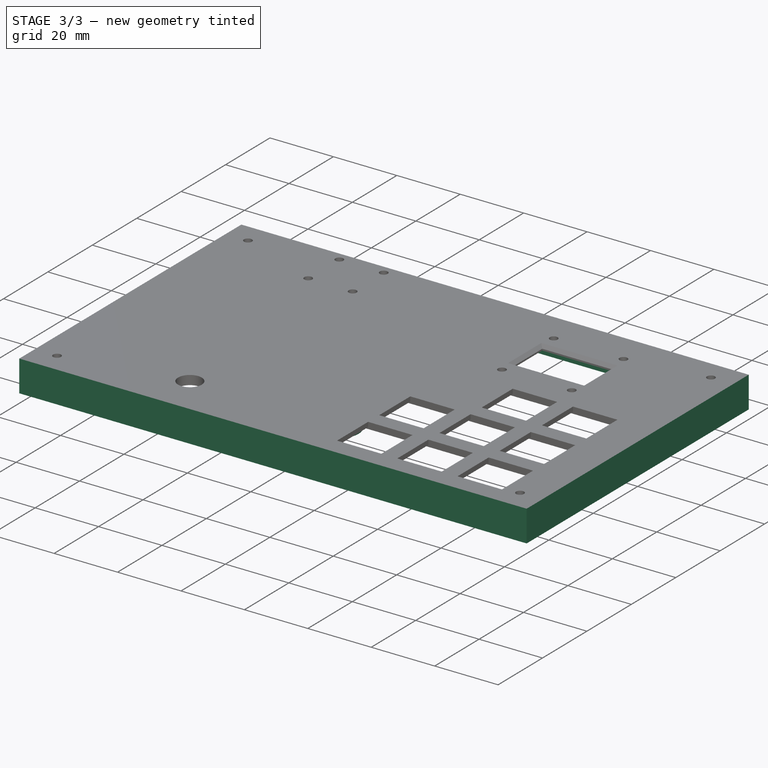
[diagram: stage 3 of 3 — iso view after this stage's code; geometry added in this stage tinted green]
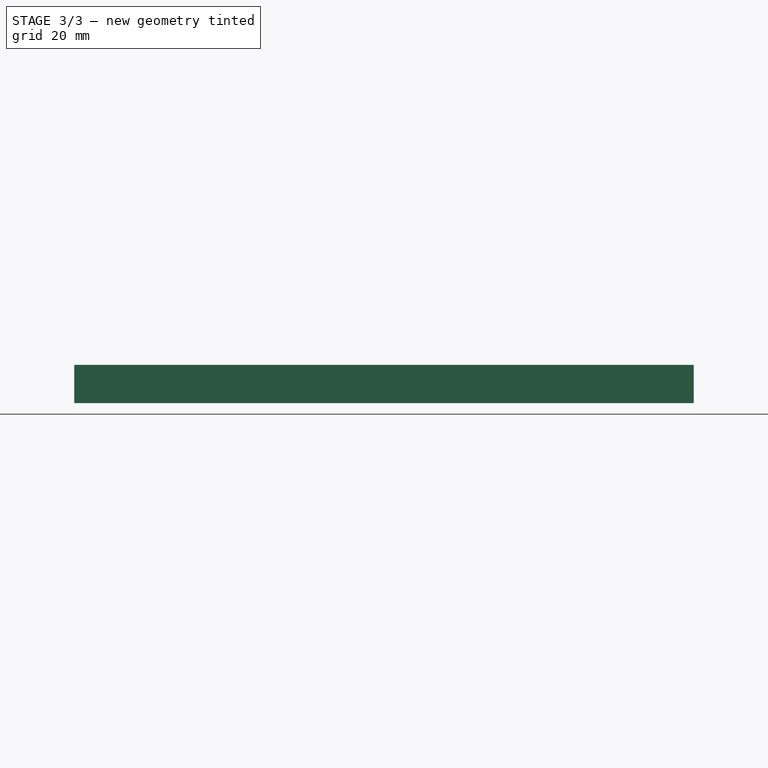
[diagram: stage 3 of 3 — front view after this stage's code; geometry added in this stage tinted green]
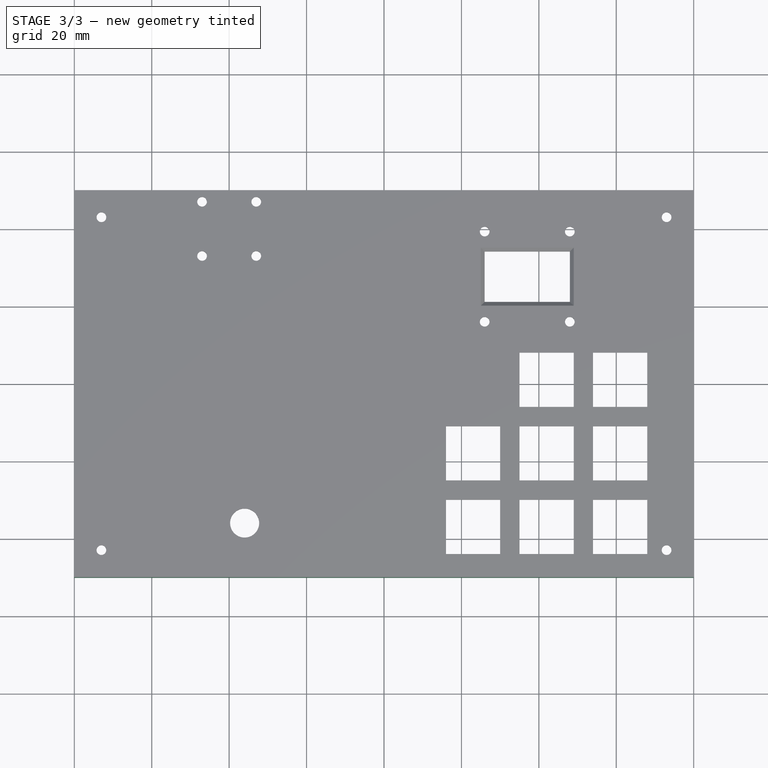
[diagram: stage 3 of 3 — top view after this stage's code; geometry added in this stage tinted green]
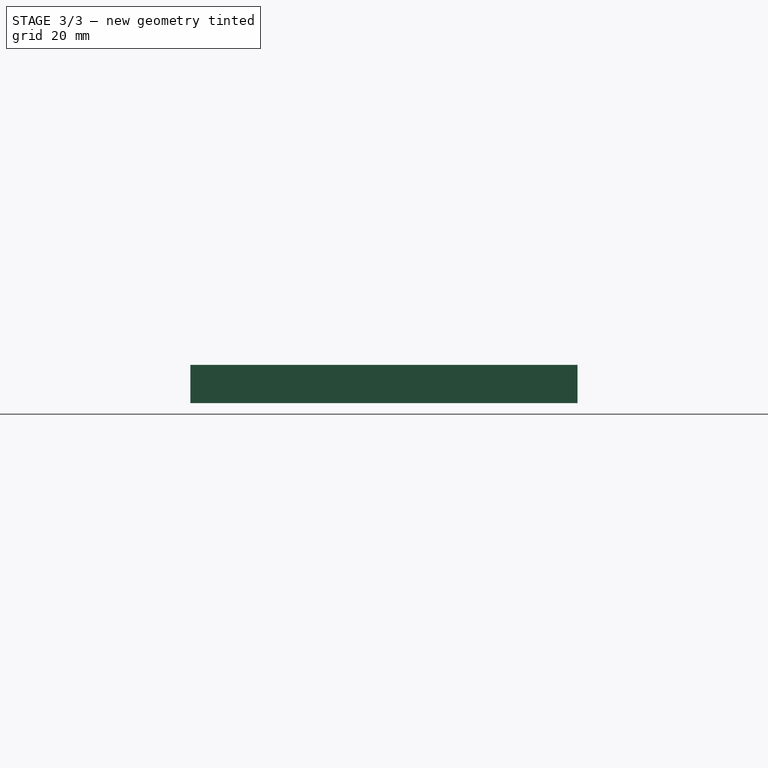
[diagram: stage 3 of 3 — right view after this stage's code; geometry added in this stage tinted green]
FEATURE [Sketcher::SketchObject] Sketch003  label="height_pads"
  ArcFitTolerance = 1e-06
  AttachmentSupport = -> [Pad001]
  FullyConstrained = true
  MakeInternals = false
  MapMode = 5
  Placement = pos=(0,0,-1.4) rot=(1,0,0;3.14159rad)
  expr: Constraints[49] = <<base_plate>>.Constraints.plate_length / 2 - 30.9 mm
  expr: Constraints[6] = <<base_plate>>.Constraints.plate_length
  expr: Constraints[7] = <<base_plate>>.Constraints.plate_width
  sketch-geometry (19):
    g0: LineSegment StartX=80 StartY=-50 StartZ=0 EndX=80 EndY=50 EndZ=0
    g1: LineSegment StartX=80 StartY=50 StartZ=0 EndX=-80 EndY=50 EndZ=0
    g2: LineSegment StartX=-80 StartY=50 StartZ=0 EndX=-80 EndY=-50 EndZ=0
    g3: GeomPoint [constr] X=0 Y=0 Z=0
    g4: LineSegment StartX=-77 StartY=47 StartZ=0 EndX=77 EndY=47 EndZ=0
    g5: LineSegment StartX=-77 StartY=47 StartZ=0 EndX=-77 EndY=-47 EndZ=0
    g6: LineSegment StartX=-77 StartY=-47 StartZ=0 EndX=-52.1 EndY=-47 EndZ=0
    g7: LineSegment StartX=-27.9 StartY=-47 StartZ=0 EndX=77 EndY=-47 EndZ=0
    g8: LineSegment StartX=77 StartY=-47 StartZ=0 EndX=77 EndY=47 EndZ=0
    g9: LineSegment StartX=-80 StartY=-50 StartZ=0 EndX=-49.1 EndY=-50 EndZ=0
    g10: LineSegment StartX=80 StartY=-50 StartZ=0 EndX=-30.9 EndY=-50 EndZ=0
    g11: LineSegment StartX=-52.1 StartY=-47 StartZ=0 EndX=-52.1 EndY=-30.9 EndZ=0
    g12: LineSegment StartX=-52.1 StartY=-30.9 StartZ=0 EndX=-49.1 EndY=-30.9 EndZ=0
    g13: LineSegment StartX=-49.1 StartY=-30.9 StartZ=0 EndX=-49.1 EndY=-50 EndZ=0
    g14: LineSegment StartX=-27.9 StartY=-47 StartZ=0 EndX=-27.9 EndY=-30.9 EndZ=0
    g15: LineSegment StartX=-27.9 StartY=-30.9 StartZ=0 EndX=-30.9 EndY=-30.9 EndZ=0
    g16: LineSegment StartX=-30.9 StartY=-30.9 StartZ=0 EndX=-30.9 EndY=-50 EndZ=0
    g17: Circle CenterX=0 CenterY=20 CenterZ=0 NormalX=0 NormalY=0 NormalZ=1 AngleXU=0 Radius=6
    g18: Circle CenterX=0 CenterY=-20 CenterZ=0 NormalX=0 NormalY=0 NormalZ=1 AngleXU=0 Radius=6
  constraints (52):
    c: Coincident(g0,g1)
    c: Coincident(g1,g2)
    c: Vertical(g0)
    c: Horizontal(g1)
    c: Symmetric(g2,g0,g3)
    c: Coincident(g3,g-1)
    c: DistanceX(g1,g1) = 160
    c: DistanceY(g2,g2) = 100
    c: Horizontal(g4)
    c: Coincident(g5,g4)
    c: Vertical(g5)
    c: Coincident(g5,g6)
    c: Horizontal(g6)
    c: Horizontal(g7)
    c: Coincident(g7,g8)
    c: Coincident(g8,g4)
    c: Vertical(g8)
    c: Coincident(g9,g2)
    c: Horizontal(g9)
    c: Coincident(g10,g0)
    c: Horizontal(g10)
    c: Coincident(g6,g11)
    c: Vertical(g11)
    c: Coincident(g11,g12)
    c: Coincident(g12,g13)
    c: Coincident(g13,g9)
    c: Coincident(g7,g14)
    c: Vertical(g14)
    c: Coincident(g14,g15)
    c: Horizontal(g15)
    c: Coincident(g15,g16)
    c: Coincident(g16,g10)
    c: Vertical(g16)
    c: Diameter(g17) = 12
    c: PointOnObject(g17,g-2)
    c: Diameter(g18) = 12
    c: Symmetric(g17,g18,g-1)
    c: DistanceY(g18,g17) = 40
    c: Symmetric(g1,g2,g-1)
    c: Distance(g5,g2) = 3
    c: Distance(g5,g9) = 3
    c: Vertical(g13)
    c: Distance(g6,g13) = 3
    c: Horizontal(g12)
    c: Distance(g6,g12) = 16.1
    c: Distance(g7,g16) = 3
    c: Distance(g14,g7) = 16.1
    c: Distance(g7,g10) = 3
    c: Distance(g7,g0) = 3
    c: Distance(g13,g-2) = 49.1
    c: Distance(g16,g13) = 18.2
    c: Distance(g4,g1) = 3
FEATURE [PartDesign::Pad] Pad002
  BaseFeature = -> Pad001
  Direction = (0,0,-1)
  Length = 7
  Length2 = 10
  Profile = -> Sketch003
  ReferenceAxis = -> Sketch003 [N_Axis]
  Refine = true
  Suppressed = false
  Type = 0
FEATURE [PartDesign::Chamfer] Chamfer
  Angle = 45
  Base = -> Pad002 [Edge74,Edge70,Edge67,Edge72]
  BaseFeature = -> Pad002
  ChamferType = 0
  FlipDirection = false
  Refine = true
  Size = 1
  Size2 = 1
  SupportTransform = false
  Suppressed = false
  UseAllEdges = false
FEATURE [PartDesign::Body] Body
  AllowCompound = false
  Group = -> [Sketch,Pad,Sketch001,Pocket,Sketch002,Pad001,Sketch003,Pad002,Chamfer]
  Origin = -> Origin
  Placement = pos=(0,0,0) rot=(0,1,0;3.14159rad)
  Tip = -> Chamfer
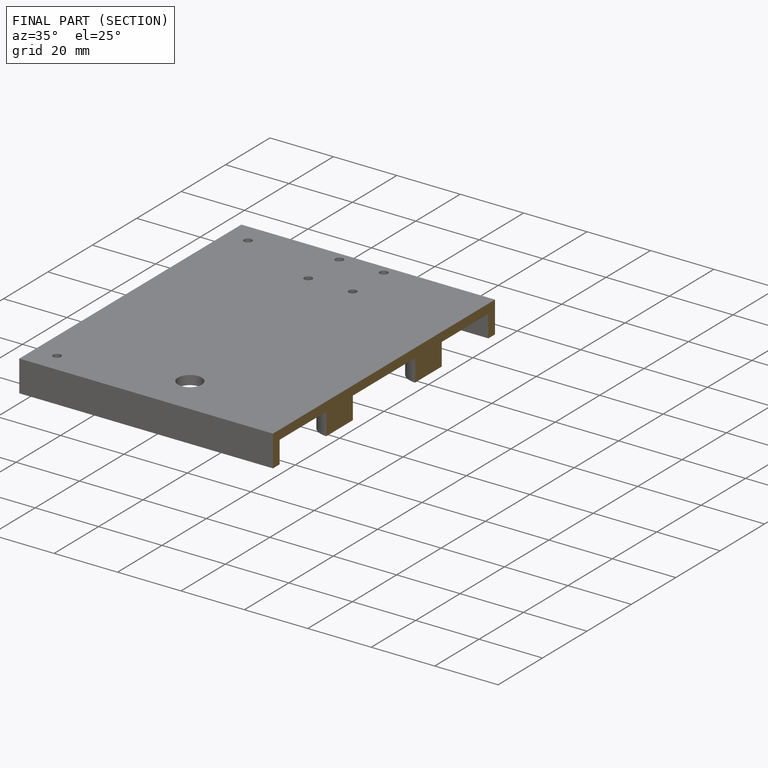
[diagram: finished part — half-section view (interior)]
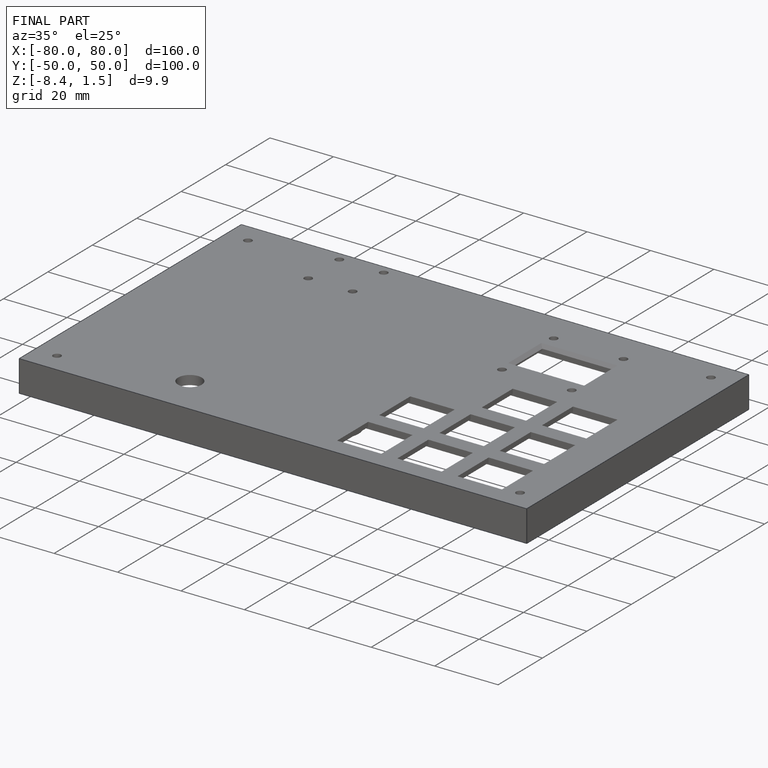
[diagram: finished part — iso view with bounding-box wireframe]
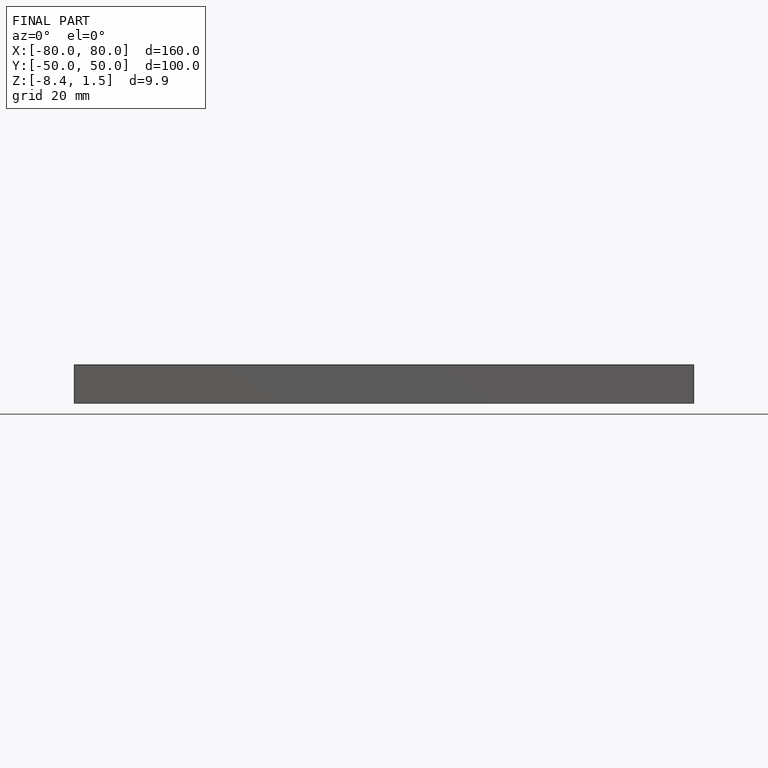
[diagram: finished part — front view with bounding-box wireframe]
